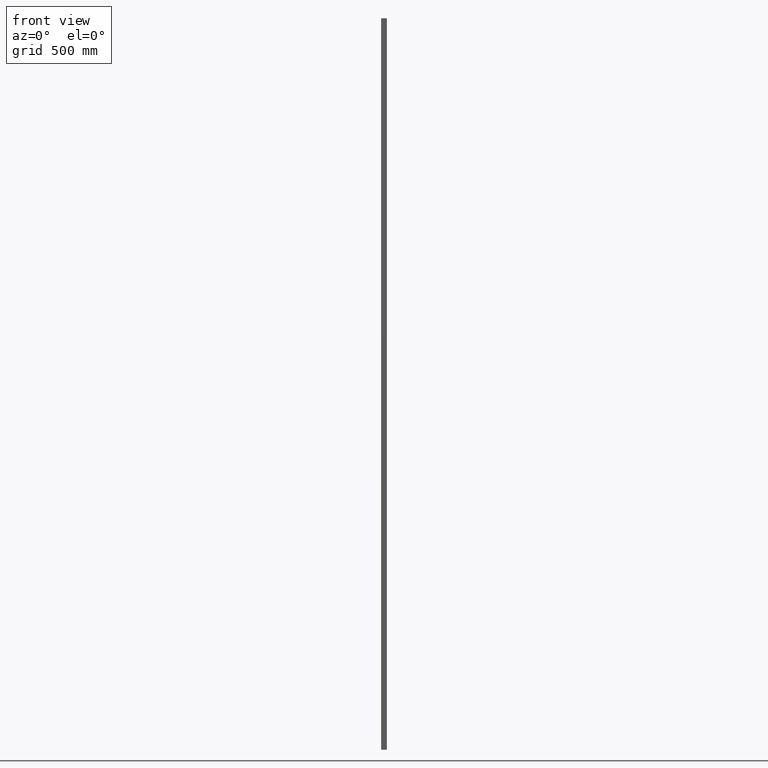
[diagram: clean part render]
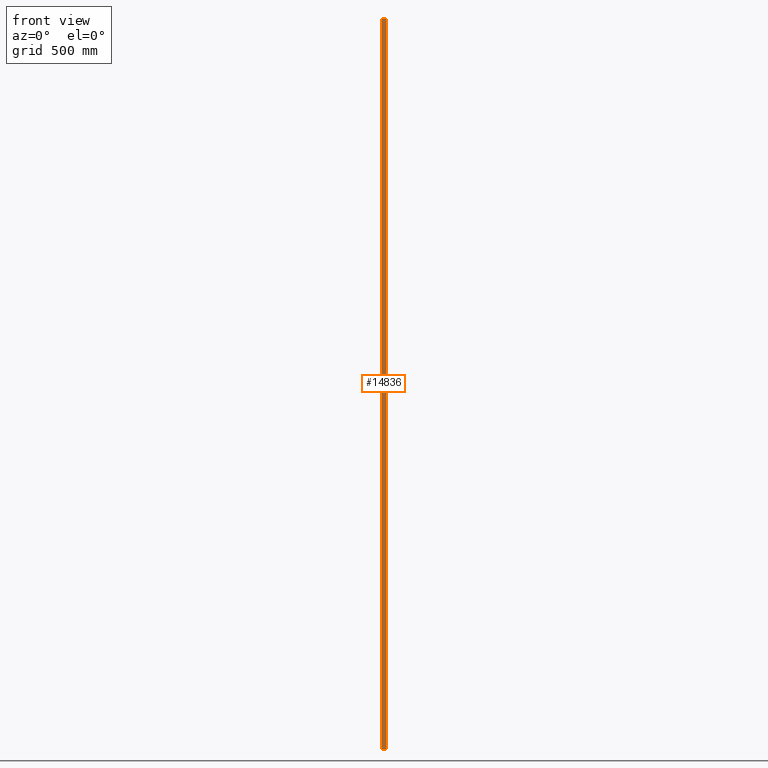
[diagram: same view with one face highlighted and labeled with its STEP entity id]
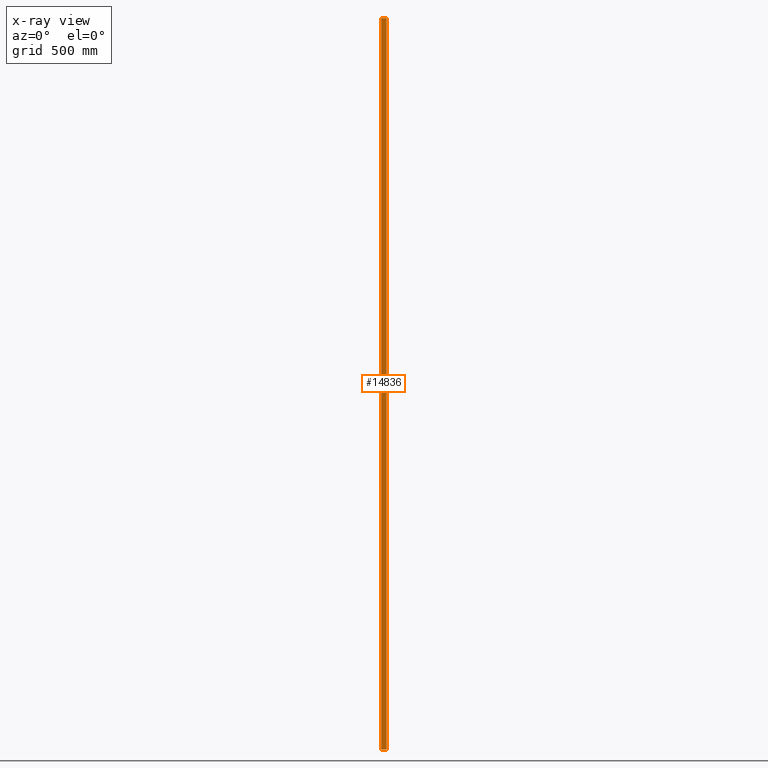
[diagram: x-ray of the same camera — body ghosted, the highlighted face saturated]
A machine part, front view. The second image highlights one B-rep face of the part: STEP entity #14836.
The next image is the same camera in x-ray: the body ghosted, the highlighted face saturated — about 0% of this face is hidden behind the body in this view.
In plain terms, the highlighted planar face has unit normal (0, 1, 0).
Its self-contained STEP definition (entity closure, byte-faithful):
#312 = CARTESIAN_POINT ( 'NONE',  ( -10.00000000000000200, 18.00000000000000400, -1500.000000000000000 ) ) ;
#413 = ORIENTED_EDGE ( 'NONE', *, *, #13458, .F. ) ;
#728 = DIRECTION ( 'NONE',  ( -0.0000000000000000000, -0.0000000000000000000, -1.000000000000000000 ) ) ;
#1244 = VERTEX_POINT ( 'NONE', #5565 ) ;
#2330 = ORIENTED_EDGE ( 'NONE', *, *, #8688, .T. ) ;
#2337 = VECTOR ( 'NONE', #8887, 1000.000000000000000 ) ;
#3145 = CARTESIAN_POINT ( 'NONE',  ( 9.999999999999998200, 18.00000000000000400, 1500.000000000000000 ) ) ;
#3180 = FACE_OUTER_BOUND ( 'NONE', #15299, .T. ) ;
#3300 = PLANE ( 'NONE',  #3919 ) ;
#3747 = EDGE_CURVE ( 'NONE', #15123, #10744, #7115, .T. ) ;
#3919 = AXIS2_PLACEMENT_3D ( 'NONE', #10486, #11681, #4598 ) ;
#4406 = EDGE_CURVE ( 'NONE', #1244, #7893, #9331, .T. ) ;
#4440 = DIRECTION ( 'NONE',  ( 1.000000000000000000, 0.0000000000000000000, 0.0000000000000000000 ) ) ;
#4598 = DIRECTION ( 'NONE',  ( 0.0000000000000000000, -0.0000000000000000000, 1.000000000000000000 ) ) ;
#5343 = LINE ( 'NONE', #10328, #9067 ) ;
#5565 = CARTESIAN_POINT ( 'NONE',  ( -10.00000000000000200, 18.00000000000000400, 1500.000000000000000 ) ) ;
#6460 = CARTESIAN_POINT ( 'NONE',  ( -10.00000000000000200, 18.00000000000000400, -1500.000000000000000 ) ) ;
#6680 = CARTESIAN_POINT ( 'NONE',  ( -10.00000000000000200, 18.00000000000000400, 1500.000000000000000 ) ) ;
#7115 = LINE ( 'NONE', #3145, #13976 ) ;
#7361 = ORIENTED_EDGE ( 'NONE', *, *, #3747, .F. ) ;
#7893 = VERTEX_POINT ( 'NONE', #312 ) ;
#8688 = EDGE_CURVE ( 'NONE', #7893, #10744, #11034, .T. ) ;
#8887 = DIRECTION ( 'NONE',  ( 1.000000000000000000, 0.0000000000000000000, 0.0000000000000000000 ) ) ;
#9067 = VECTOR ( 'NONE', #4440, 1000.000000000000000 ) ;
#9331 = LINE ( 'NONE', #6680, #12083 ) ;
#10328 = CARTESIAN_POINT ( 'NONE',  ( -10.00000000000000200, 18.00000000000000400, 1500.000000000000000 ) ) ;
#10388 = DIRECTION ( 'NONE',  ( -0.0000000000000000000, -0.0000000000000000000, -1.000000000000000000 ) ) ;
#10486 = CARTESIAN_POINT ( 'NONE',  ( -10.00000000000000200, 18.00000000000000400, 1500.000000000000000 ) ) ;
#10744 = VERTEX_POINT ( 'NONE', #13160 ) ;
#11034 = LINE ( 'NONE', #6460, #2337 ) ;
#11681 = DIRECTION ( 'NONE',  ( 0.0000000000000000000, 1.000000000000000000, 0.0000000000000000000 ) ) ;
#11838 = CARTESIAN_POINT ( 'NONE',  ( 9.999999999999998200, 18.00000000000000400, 1500.000000000000000 ) ) ;
#12083 = VECTOR ( 'NONE', #728, 1000.000000000000000 ) ;
#13160 = CARTESIAN_POINT ( 'NONE',  ( 9.999999999999998200, 18.00000000000000400, -1500.000000000000000 ) ) ;
#13188 = ORIENTED_EDGE ( 'NONE', *, *, #4406, .T. ) ;
#13458 = EDGE_CURVE ( 'NONE', #1244, #15123, #5343, .T. ) ;
#13976 = VECTOR ( 'NONE', #10388, 1000.000000000000000 ) ;
#14836 = ADVANCED_FACE ( 'NONE', ( #3180 ), #3300, .F. ) ;
#15123 = VERTEX_POINT ( 'NONE', #11838 ) ;
#15299 = EDGE_LOOP ( 'NONE', ( #2330, #7361, #413, #13188 ) ) ;